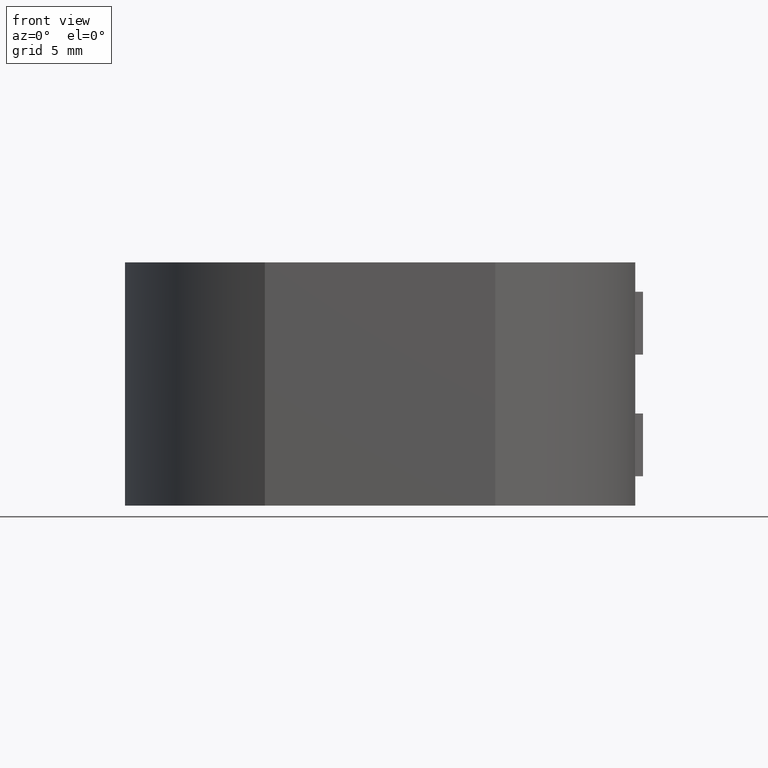
[diagram: clean part render]
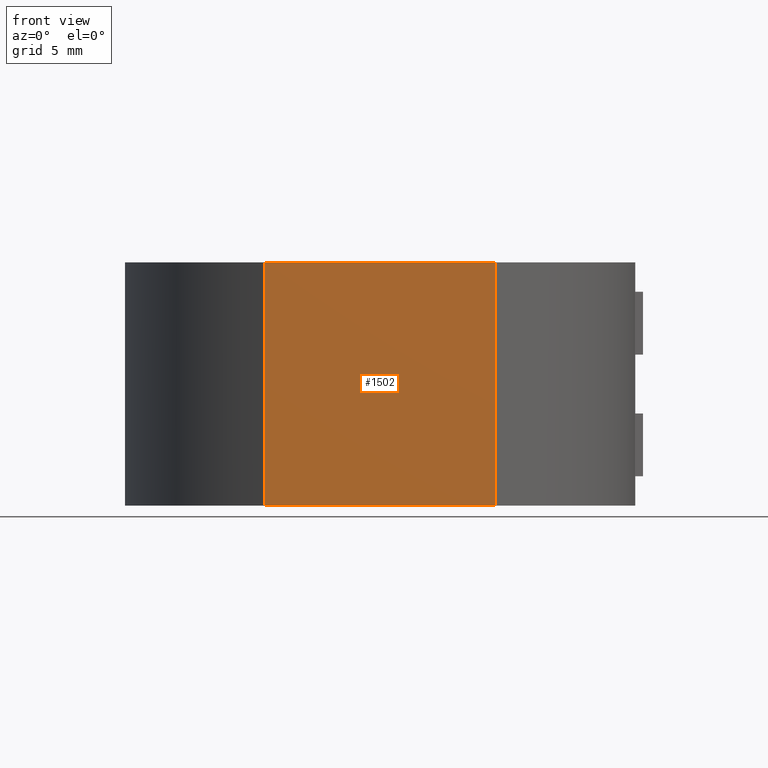
[diagram: same view with one face highlighted and labeled with its STEP entity id]
A machine part, front view. The second image highlights one B-rep face of the part: STEP entity #1502.
In plain terms, the highlighted planar face has unit normal (-0, 1, 0).
Its self-contained STEP definition (entity closure, byte-faithful):
#99 = DIRECTION ( 'NONE',  ( -0.0000000000000000000, 1.000000000000000000, 0.0000000000000000000 ) ) ;
#109 = CARTESIAN_POINT ( 'NONE',  ( -7.335701109589304100, -14.50000307692278600, -7.750000000000000000 ) ) ;
#147 = CARTESIAN_POINT ( 'NONE',  ( -7.335701109589304100, -14.50000307692278600, -7.750000000000000000 ) ) ;
#295 = DIRECTION ( 'NONE',  ( -0.0000000000000000000, -0.0000000000000000000, 1.000000000000000000 ) ) ;
#400 = CARTESIAN_POINT ( 'NONE',  ( 7.335701109589304100, -14.49999962864724700, -7.750000000000000000 ) ) ;
#430 = VECTOR ( 'NONE', #1601, 1000.000000000000000 ) ;
#465 = LINE ( 'NONE', #1141, #430 ) ;
#552 = DIRECTION ( 'NONE',  ( -1.000000000000000000, -0.0000000000000000000, -0.0000000000000000000 ) ) ;
#591 = CARTESIAN_POINT ( 'NONE',  ( 7.335701109589304100, -14.50000307692278600, 7.750000000000000000 ) ) ;
#827 = VECTOR ( 'NONE', #295, 1000.000000000000000 ) ;
#857 = DIRECTION ( 'NONE',  ( -0.0000000000000000000, -0.0000000000000000000, 1.000000000000000000 ) ) ;
#862 = VERTEX_POINT ( 'NONE', #400 ) ;
#960 = EDGE_CURVE ( 'NONE', #862, #2795, #1732, .T. ) ;
#964 = ORIENTED_EDGE ( 'NONE', *, *, #960, .T. ) ;
#1141 = CARTESIAN_POINT ( 'NONE',  ( -7.335701109589304100, -14.50000307692278600, 7.750000000000000000 ) ) ;
#1187 = VERTEX_POINT ( 'NONE', #2063 ) ;
#1188 = LINE ( 'NONE', #1239, #2036 ) ;
#1239 = CARTESIAN_POINT ( 'NONE',  ( 0.0000000000000000000, -14.50000307692278600, -7.750000000000000000 ) ) ;
#1264 = PLANE ( 'NONE',  #2540 ) ;
#1279 = EDGE_CURVE ( 'NONE', #3011, #1187, #1679, .T. ) ;
#1337 = ORIENTED_EDGE ( 'NONE', *, *, #2919, .T. ) ;
#1453 = ORIENTED_EDGE ( 'NONE', *, *, #1279, .F. ) ;
#1502 = ADVANCED_FACE ( 'NONE', ( #2669 ), #1264, .F. ) ;
#1601 = DIRECTION ( 'NONE',  ( -1.000000000000000000, -0.0000000000000000000, -0.0000000000000000000 ) ) ;
#1679 = LINE ( 'NONE', #147, #2414 ) ;
#1732 = LINE ( 'NONE', #1736, #827 ) ;
#1736 = CARTESIAN_POINT ( 'NONE',  ( 7.335701109589304100, -14.50000307692278600, -7.750000000000000000 ) ) ;
#2036 = VECTOR ( 'NONE', #552, 1000.000000000000000 ) ;
#2063 = CARTESIAN_POINT ( 'NONE',  ( -7.335701109589304100, -14.50000307692278600, 7.750000000000000000 ) ) ;
#2340 = CARTESIAN_POINT ( 'NONE',  ( -7.335701109589304100, -14.50000307692278600, -7.750000000000000000 ) ) ;
#2414 = VECTOR ( 'NONE', #857, 1000.000000000000000 ) ;
#2529 = ORIENTED_EDGE ( 'NONE', *, *, #2663, .F. ) ;
#2540 = AXIS2_PLACEMENT_3D ( 'NONE', #109, #99, #3006 ) ;
#2663 = EDGE_CURVE ( 'NONE', #862, #3011, #1188, .T. ) ;
#2669 = FACE_OUTER_BOUND ( 'NONE', #2670, .T. ) ;
#2670 = EDGE_LOOP ( 'NONE', ( #1337, #1453, #2529, #964 ) ) ;
#2795 = VERTEX_POINT ( 'NONE', #591 ) ;
#2919 = EDGE_CURVE ( 'NONE', #2795, #1187, #465, .T. ) ;
#3006 = DIRECTION ( 'NONE',  ( 0.0000000000000000000, -0.0000000000000000000, 1.000000000000000000 ) ) ;
#3011 = VERTEX_POINT ( 'NONE', #2340 ) ;